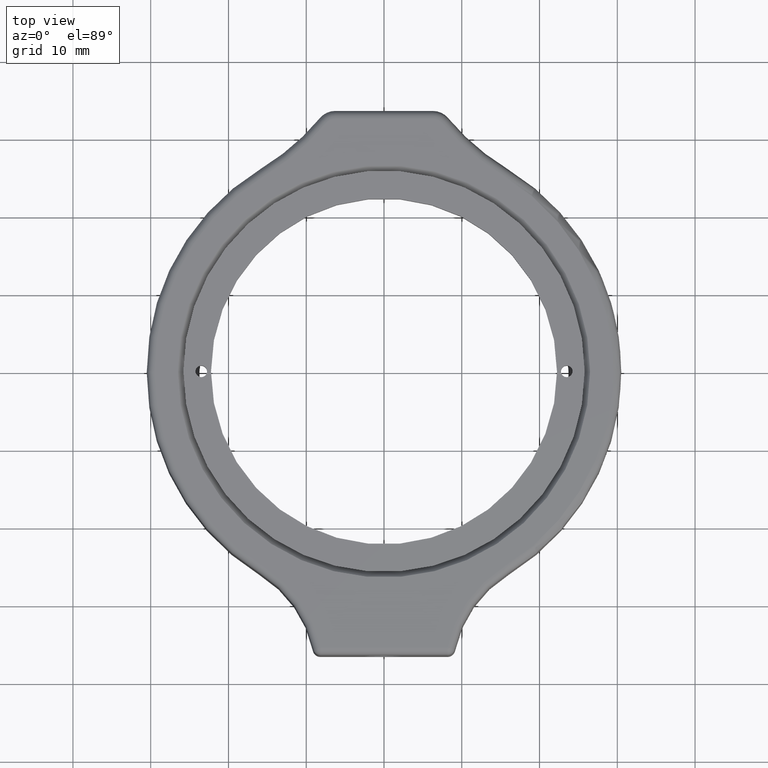
[diagram: clean part render]
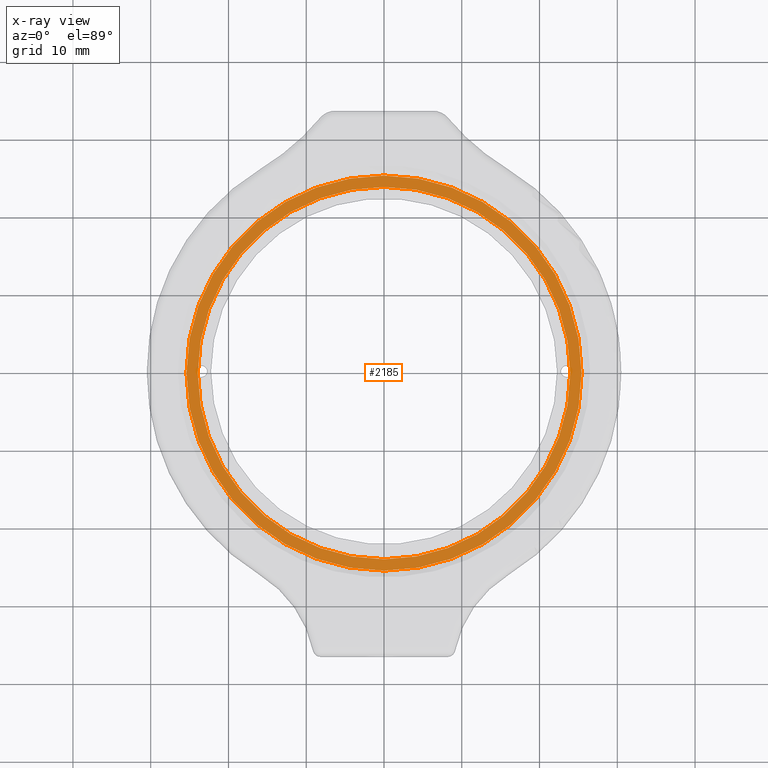
[diagram: x-ray — body ghosted, one internal face saturated and labeled with its STEP entity id]
A machine part, top view, then the same camera in x-ray: the body is ghosted and one INTERNAL B-rep face — a face not visible from any outside direction — is saturated and labeled: STEP entity #2185.
In plain terms, the highlighted planar face has unit normal (0, 0, -1).
Its self-contained STEP definition (entity closure, byte-faithful):
#29 = PLANE ( 'NONE',  #257 ) ;
#33 = EDGE_CURVE ( 'NONE', #1124, #1370, #1339, .T. ) ;
#86 = CARTESIAN_POINT ( 'NONE',  ( 0.0000000000000000000, 0.0000000000000000000, -14.00000000000000000 ) ) ;
#138 = CIRCLE ( 'NONE', #2024, 25.39999999999999500 ) ;
#142 = VERTEX_POINT ( 'NONE', #1079 ) ;
#257 = AXIS2_PLACEMENT_3D ( 'NONE', #910, #2076, #1038 ) ;
#297 = EDGE_LOOP ( 'NONE', ( #2035, #2101 ) ) ;
#305 = EDGE_CURVE ( 'NONE', #142, #1954, #529, .T. ) ;
#478 = CARTESIAN_POINT ( 'NONE',  ( 0.0000000000000000000, 0.0000000000000000000, -14.00000000000000000 ) ) ;
#513 = DIRECTION ( 'NONE',  ( -1.000000000000000000, 5.551115123125783700E-016, 0.0000000000000000000 ) ) ;
#529 = CIRCLE ( 'NONE', #1161, 25.39999999999999500 ) ;
#587 = CARTESIAN_POINT ( 'NONE',  ( 23.94999999999999600, -1.036189163592833800E-014, -14.00000000000000000 ) ) ;
#644 = DIRECTION ( 'NONE',  ( 0.0000000000000000000, 0.0000000000000000000, -1.000000000000000000 ) ) ;
#664 = CARTESIAN_POINT ( 'NONE',  ( 0.0000000000000000000, 0.0000000000000000000, -14.00000000000000000 ) ) ;
#731 = ORIENTED_EDGE ( 'NONE', *, *, #991, .T. ) ;
#836 = DIRECTION ( 'NONE',  ( -0.0000000000000000000, -0.0000000000000000000, 1.000000000000000000 ) ) ;
#910 = CARTESIAN_POINT ( 'NONE',  ( 0.0000000000000000000, 0.0000000000000000000, -14.00000000000000000 ) ) ;
#991 = EDGE_CURVE ( 'NONE', #1370, #1124, #2121, .T. ) ;
#1038 = DIRECTION ( 'NONE',  ( -1.000000000000000000, 5.551115123125783700E-016, 0.0000000000000000000 ) ) ;
#1079 = CARTESIAN_POINT ( 'NONE',  ( 25.39999999999999500, -1.101086188452510100E-014, -14.00000000000000000 ) ) ;
#1124 = VERTEX_POINT ( 'NONE', #2244 ) ;
#1143 = DIRECTION ( 'NONE',  ( -1.000000000000000000, 5.551115123125783700E-016, 0.0000000000000000000 ) ) ;
#1161 = AXIS2_PLACEMENT_3D ( 'NONE', #86, #2142, #1796 ) ;
#1185 = DIRECTION ( 'NONE',  ( 0.0000000000000000000, 0.0000000000000000000, -1.000000000000000000 ) ) ;
#1205 = CARTESIAN_POINT ( 'NONE',  ( -25.39999999999999500, 1.409983241273948800E-014, -14.00000000000000000 ) ) ;
#1248 = EDGE_LOOP ( 'NONE', ( #1415, #731 ) ) ;
#1267 = AXIS2_PLACEMENT_3D ( 'NONE', #1863, #1185, #513 ) ;
#1268 = FACE_BOUND ( 'NONE', #1248, .T. ) ;
#1339 = CIRCLE ( 'NONE', #1267, 23.94999999999999600 ) ;
#1370 = VERTEX_POINT ( 'NONE', #587 ) ;
#1415 = ORIENTED_EDGE ( 'NONE', *, *, #33, .T. ) ;
#1607 = EDGE_CURVE ( 'NONE', #1954, #142, #138, .T. ) ;
#1758 = AXIS2_PLACEMENT_3D ( 'NONE', #664, #644, #1845 ) ;
#1796 = DIRECTION ( 'NONE',  ( -1.000000000000000000, 5.551115123125783700E-016, 0.0000000000000000000 ) ) ;
#1845 = DIRECTION ( 'NONE',  ( -1.000000000000000000, 5.551115123125783700E-016, 0.0000000000000000000 ) ) ;
#1863 = CARTESIAN_POINT ( 'NONE',  ( 0.0000000000000000000, 0.0000000000000000000, -14.00000000000000000 ) ) ;
#1954 = VERTEX_POINT ( 'NONE', #1205 ) ;
#2024 = AXIS2_PLACEMENT_3D ( 'NONE', #478, #836, #1143 ) ;
#2035 = ORIENTED_EDGE ( 'NONE', *, *, #1607, .T. ) ;
#2076 = DIRECTION ( 'NONE',  ( 0.0000000000000000000, 0.0000000000000000000, -1.000000000000000000 ) ) ;
#2101 = ORIENTED_EDGE ( 'NONE', *, *, #305, .T. ) ;
#2121 = CIRCLE ( 'NONE', #1758, 23.94999999999999600 ) ;
#2137 = FACE_OUTER_BOUND ( 'NONE', #297, .T. ) ;
#2142 = DIRECTION ( 'NONE',  ( -0.0000000000000000000, -0.0000000000000000000, 1.000000000000000000 ) ) ;
#2185 = ADVANCED_FACE ( 'NONE', ( #2137, #1268 ), #29, .F. ) ;
#2244 = CARTESIAN_POINT ( 'NONE',  ( -23.94999999999999600, 1.329492071988625000E-014, -14.00000000000000000 ) ) ;